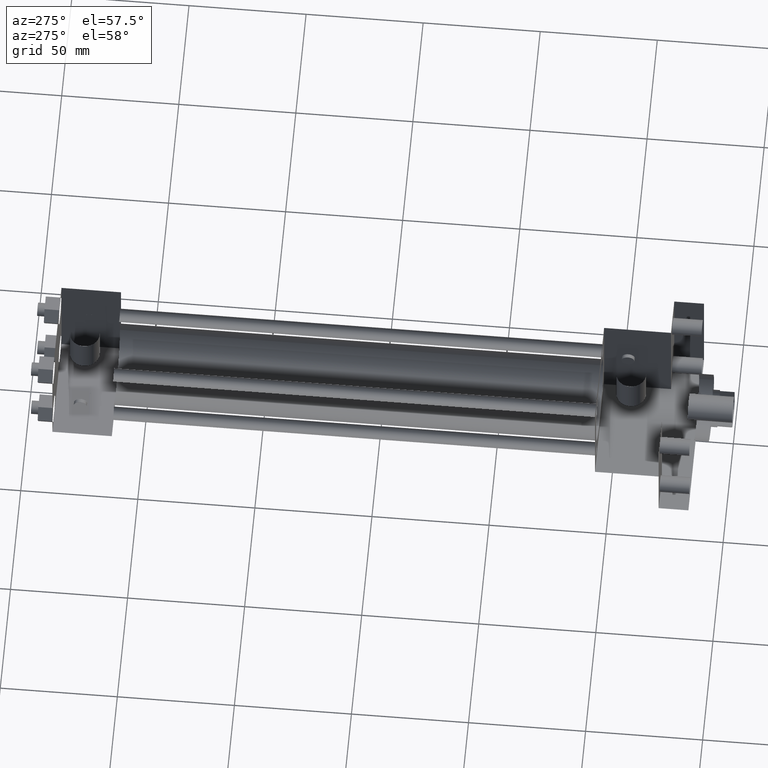
[diagram: clean part render]
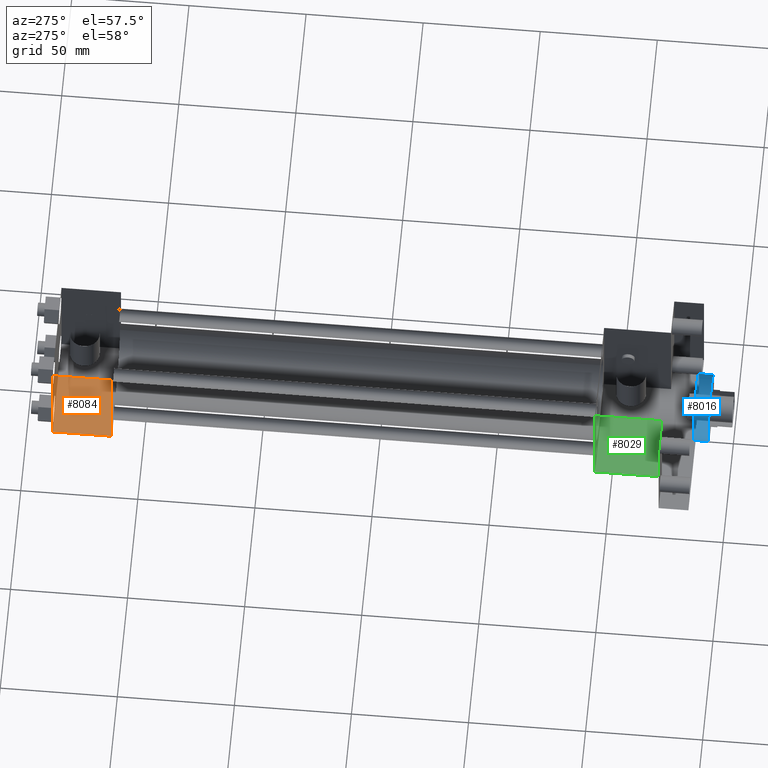
[diagram: same view with three faces highlighted in distinct colors, each labeled with its STEP entity id]
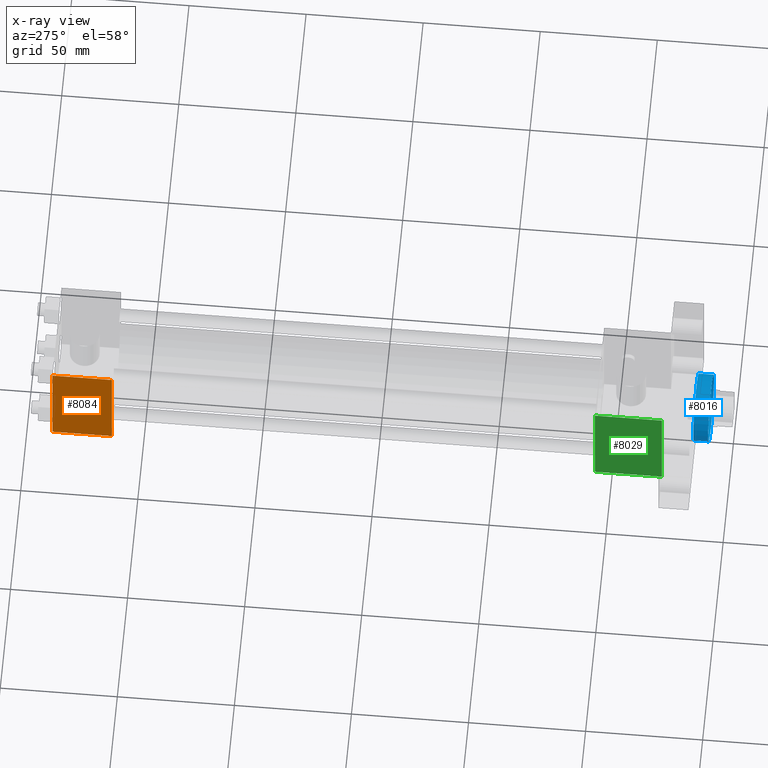
[diagram: x-ray of the same camera — body ghosted, the three highlighted faces saturated]
A machine part, auxiliary view with three faces highlighted in distinct colors.
The next image is the same camera in x-ray (body ghosted, the three faces saturated) — at least one of them is partly hidden behind the body in this view.
Their STEP definitions:

[orange] entity #8084 — the highlighted planar face has unit normal (-1, 0, 0).
#2244=VERTEX_POINT('',#2246);
#2246=CARTESIAN_POINT('',(-2.222500000E+001,2.889250000E+002,-2.222500000E+001));
#2248=EDGE_CURVE('',#2253,#2244,#2249,.T.);
#2249=LINE('',#2250,#2251);
#2250=CARTESIAN_POINT('',(-2.222500000E+001,2.889250000E+002,2.222500000E+001));
#2251=VECTOR('',#2252,1.0E+000);
#2252=DIRECTION('',(0.0E+000,0.0E+000,-1.0E+000));
#2253=VERTEX_POINT('',#2254);
#2254=CARTESIAN_POINT('',(-2.222500000E+001,2.889250000E+002,2.222500000E+001));
#2417=VERTEX_POINT('',#2419);
#2419=CARTESIAN_POINT('',(-2.222500000E+001,2.635250000E+002,-2.222500000E+001));
#2433=VERTEX_POINT('',#2434);
#2434=CARTESIAN_POINT('',(-2.222500000E+001,2.635250000E+002,2.222500000E+001));
#2435=EDGE_CURVE('',#2433,#2417,#2436,.T.);
#2436=LINE('',#2437,#2438);
#2437=CARTESIAN_POINT('',(-2.222500000E+001,2.635250000E+002,2.222500000E+001));
#2438=VECTOR('',#2439,1.0E+000);
#2439=DIRECTION('',(0.0E+000,0.0E+000,-1.0E+000));
#2462=EDGE_CURVE('',#2244,#2417,#2463,.T.);
#2463=LINE('',#2464,#2465);
#2464=CARTESIAN_POINT('',(-2.222500000E+001,2.889250000E+002,-2.222500000E+001));
#2465=VECTOR('',#2466,1.0E+000);
#2466=DIRECTION('',(0.0E+000,-1.0E+000,0.0E+000));
#2499=EDGE_CURVE('',#2253,#2433,#2500,.T.);
#2500=LINE('',#2501,#2502);
#2501=CARTESIAN_POINT('',(-2.222500000E+001,2.889250000E+002,2.222500000E+001));
#2502=VECTOR('',#2503,1.0E+000);
#2503=DIRECTION('',(0.0E+000,-1.0E+000,0.0E+000));
#2518=FACE_OUTER_BOUND('',#2520,.T.);
#2519=FACE_BOUND('',#2521,.T.);
#2520=EDGE_LOOP('',(#2522,#2523,#2524,#2525));
#2521=EDGE_LOOP('',(#2526));
#2522=ORIENTED_EDGE('',*,*,#2435,.F.);
#2523=ORIENTED_EDGE('',*,*,#2499,.F.);
#2524=ORIENTED_EDGE('',*,*,#2248,.T.);
#2525=ORIENTED_EDGE('',*,*,#2462,.T.);
#2526=ORIENTED_EDGE('',*,*,#2527,.T.);
#2527=EDGE_CURVE('',#2533,#2533,#2528,.T.);
#2528=CIRCLE('',#2529,2.778125000E+000);
#2529=AXIS2_PLACEMENT_3D('',#2530,#2531,#2532);
#2530=CARTESIAN_POINT('',(-2.222500000E+001,2.770187500E+002,0.000000000E+000));
#2531=DIRECTION('',(1.0E+000,0.0E+000,0.0E+000));
#2532=DIRECTION('',(0.0E+000,-1.0E+000,0.0E+000));
#2533=VERTEX_POINT('',#2534);
#2534=CARTESIAN_POINT('',(-2.222500000E+001,2.742406250E+002,0.000000000E+000));
#2535=PLANE('',#2536);
#2536=AXIS2_PLACEMENT_3D('',#2537,#2538,#2539);
#2537=CARTESIAN_POINT('',(-2.222500000E+001,2.889250000E+002,2.222500000E+001));
#2538=DIRECTION('',(-1.0E+000,0.0E+000,0.0E+000));
#2539=DIRECTION('',(0.0E+000,0.0E+000,1.0E+000));
#8084=ADVANCED_FACE('',(#2518,#2519),#2535,.T.);

[blue] entity #8016 — the highlighted cylindrical surface (bore or boss wall) has radius 14.2875 mm, axis along (0, -1, 0).
#405=EDGE_CURVE('',#411,#411,#406,.T.);
#406=CIRCLE('',#407,1.428750000E+001);
#407=AXIS2_PLACEMENT_3D('',#408,#409,#410);
#408=CARTESIAN_POINT('',(0.000000000E+000,9.525000000E+000,0.000000000E+000));
#409=DIRECTION('',(0.0E+000,1.0E+000,0.0E+000));
#410=DIRECTION('',(1.0E+000,0.0E+000,0.0E+000));
#411=VERTEX_POINT('',#412);
#412=CARTESIAN_POINT('',(1.428750000E+001,9.525000000E+000,0.000000000E+000));
#419=FACE_OUTER_BOUND('',#421,.T.);
#420=FACE_BOUND('',#422,.T.);
#421=EDGE_LOOP('',(#423));
#422=EDGE_LOOP('',(#432));
#423=ORIENTED_EDGE('',*,*,#424,.F.);
#424=EDGE_CURVE('',#430,#430,#425,.T.);
#425=CIRCLE('',#426,1.428750000E+001);
#426=AXIS2_PLACEMENT_3D('',#427,#428,#429);
#427=CARTESIAN_POINT('',(0.000000000E+000,1.587500000E+001,0.000000000E+000));
#428=DIRECTION('',(0.0E+000,1.0E+000,0.0E+000));
#429=DIRECTION('',(1.0E+000,0.0E+000,0.0E+000));
#430=VERTEX_POINT('',#431);
#431=CARTESIAN_POINT('',(1.428750000E+001,1.587500000E+001,0.000000000E+000));
#432=ORIENTED_EDGE('',*,*,#405,.T.);
#433=CYLINDRICAL_SURFACE('',#434,1.428750000E+001);
#434=AXIS2_PLACEMENT_3D('',#435,#436,#437);
#435=CARTESIAN_POINT('',(0.000000000E+000,1.587500000E+001,0.000000000E+000));
#436=DIRECTION('',(0.0E+000,-1.0E+000,0.0E+000));
#437=DIRECTION('',(0.0E+000,0.0E+000,-1.0E+000));
#8016=ADVANCED_FACE('',(#419,#420),#433,.T.);

[green] entity #8029 — the highlighted planar face has unit normal (-1, 0, 0).
#550=VERTEX_POINT('',#551);
#551=CARTESIAN_POINT('',(-2.222500000E+001,2.857500000E+001,-2.222500000E+001));
#552=EDGE_CURVE('',#557,#550,#553,.T.);
#553=LINE('',#554,#555);
#554=CARTESIAN_POINT('',(-2.222500000E+001,5.715000000E+001,-2.222500000E+001));
#555=VECTOR('',#556,1.0E+000);
#556=DIRECTION('',(0.0E+000,-1.0E+000,0.0E+000));
#557=VERTEX_POINT('',#558);
#558=CARTESIAN_POINT('',(-2.222500000E+001,5.715000000E+001,-2.222500000E+001));
#646=VERTEX_POINT('',#647);
#647=CARTESIAN_POINT('',(-2.222500000E+001,5.715000000E+001,2.222500000E+001));
#648=EDGE_CURVE('',#646,#653,#649,.T.);
#649=LINE('',#650,#651);
#650=CARTESIAN_POINT('',(-2.222500000E+001,5.715000000E+001,2.222500000E+001));
#651=VECTOR('',#652,1.0E+000);
#652=DIRECTION('',(0.0E+000,-1.0E+000,0.0E+000));
#653=VERTEX_POINT('',#654);
#654=CARTESIAN_POINT('',(-2.222500000E+001,2.857500000E+001,2.222500000E+001));
#719=EDGE_CURVE('',#653,#550,#720,.T.);
#720=LINE('',#721,#722);
#721=CARTESIAN_POINT('',(-2.222500000E+001,2.857500000E+001,2.222500000E+001));
#722=VECTOR('',#723,1.0E+000);
#723=DIRECTION('',(0.0E+000,0.0E+000,-1.0E+000));
#851=EDGE_CURVE('',#646,#557,#852,.T.);
#852=LINE('',#853,#854);
#853=CARTESIAN_POINT('',(-2.222500000E+001,5.715000000E+001,2.222500000E+001));
#854=VECTOR('',#855,1.0E+000);
#855=DIRECTION('',(0.0E+000,0.0E+000,-1.0E+000));
#902=FACE_OUTER_BOUND('',#904,.T.);
#903=FACE_BOUND('',#905,.T.);
#904=EDGE_LOOP('',(#906,#907,#908,#909));
#905=EDGE_LOOP('',(#910));
#906=ORIENTED_EDGE('',*,*,#851,.T.);
#907=ORIENTED_EDGE('',*,*,#552,.T.);
#908=ORIENTED_EDGE('',*,*,#719,.F.);
#909=ORIENTED_EDGE('',*,*,#648,.F.);
#910=ORIENTED_EDGE('',*,*,#911,.T.);
#911=EDGE_CURVE('',#917,#917,#912,.T.);
#912=CIRCLE('',#913,2.778125000E+000);
#913=AXIS2_PLACEMENT_3D('',#914,#915,#916);
#914=CARTESIAN_POINT('',(-2.222500000E+001,4.683125000E+001,0.000000000E+000));
#915=DIRECTION('',(1.0E+000,0.0E+000,0.0E+000));
#916=DIRECTION('',(0.0E+000,-1.0E+000,0.0E+000));
#917=VERTEX_POINT('',#918);
#918=CARTESIAN_POINT('',(-2.222500000E+001,4.405312500E+001,0.000000000E+000));
#919=PLANE('',#920);
#920=AXIS2_PLACEMENT_3D('',#921,#922,#923);
#921=CARTESIAN_POINT('',(-2.222500000E+001,5.715000000E+001,2.222500000E+001));
#922=DIRECTION('',(-1.0E+000,0.0E+000,0.0E+000));
#923=DIRECTION('',(0.0E+000,0.0E+000,1.0E+000));
#8029=ADVANCED_FACE('',(#902,#903),#919,.T.);